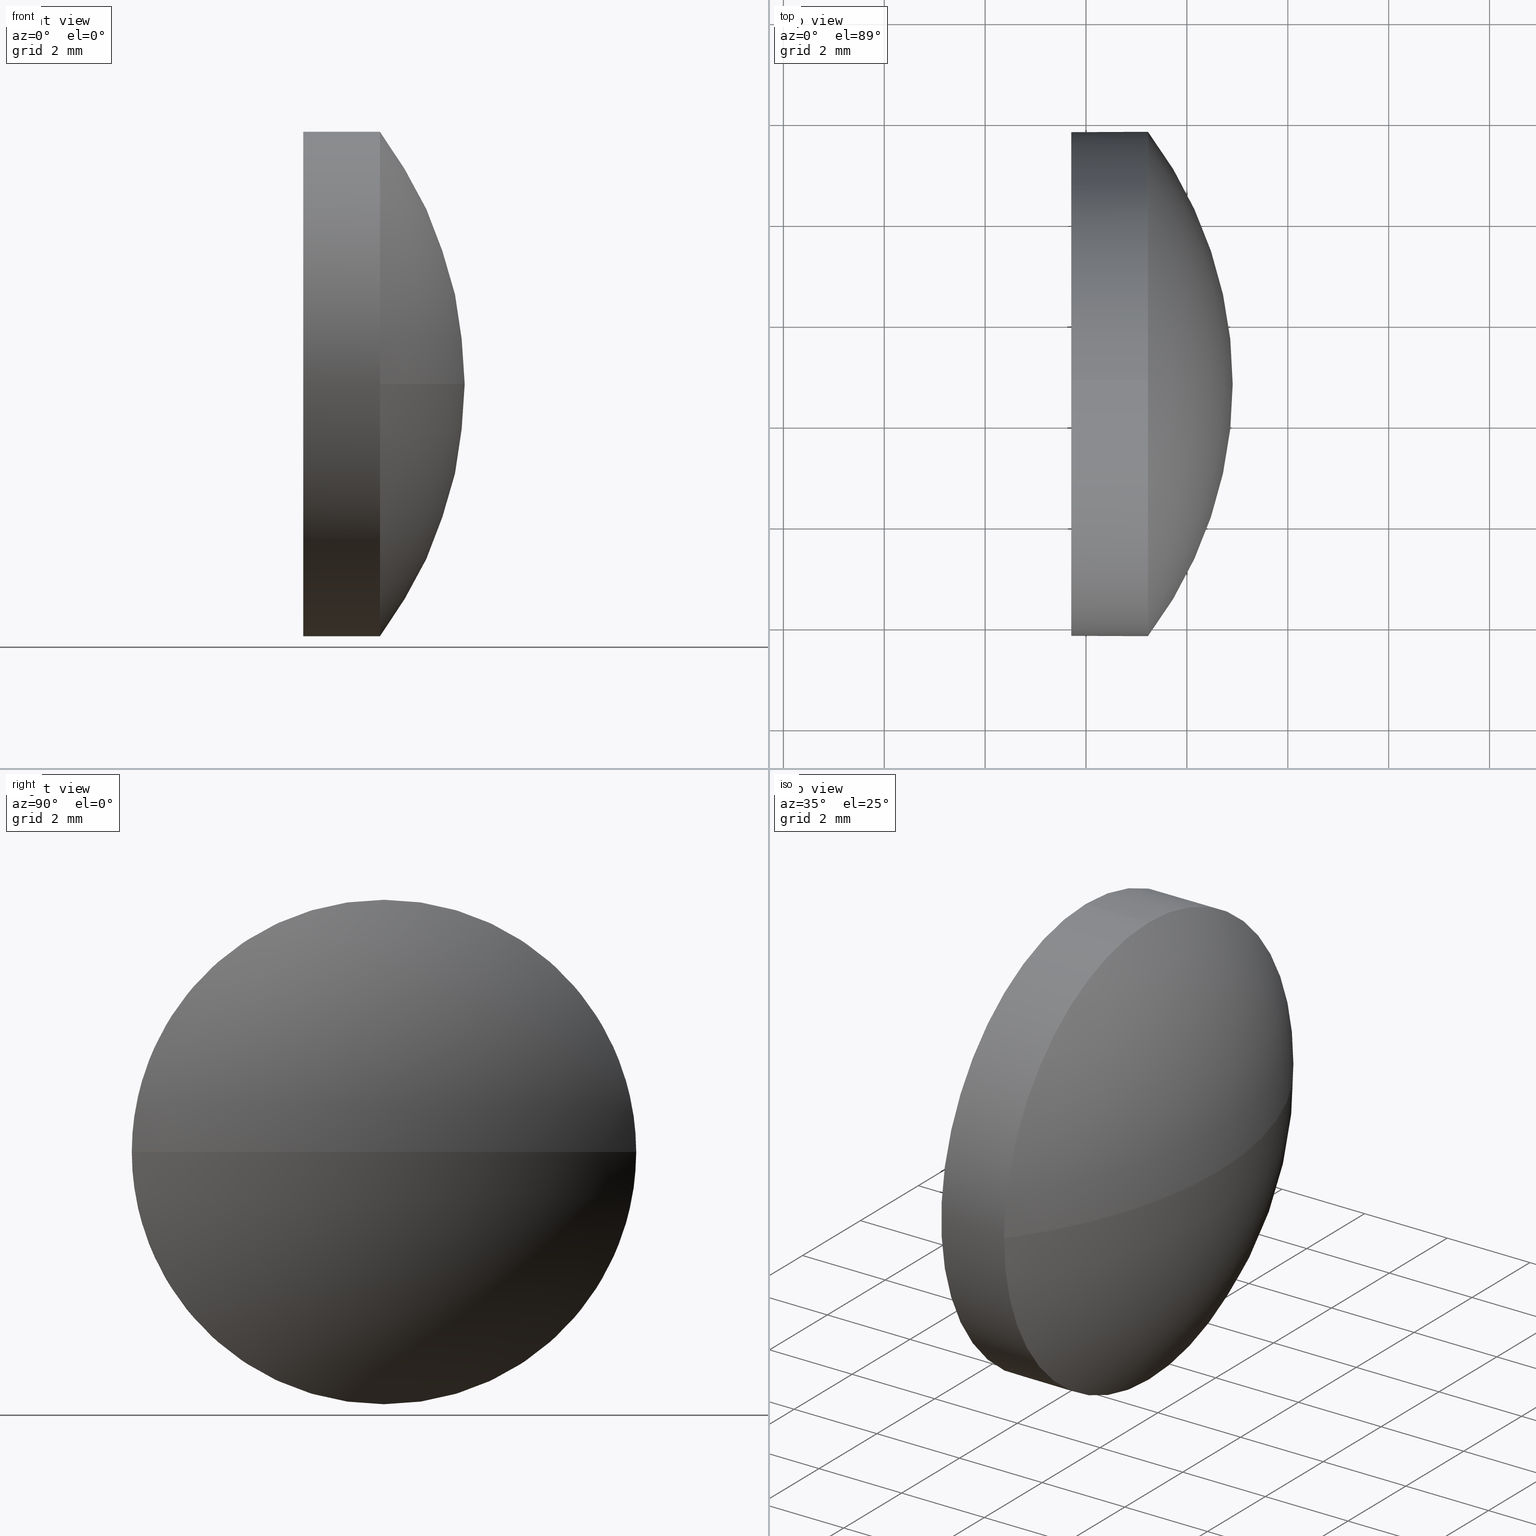
[diagram: canonical four-view strip — front | top / right | iso, engineering-drawing reading convention]
A machine part, canonical four-view strip (front | top / right | iso — engineering-drawing reading convention). The complete STEP part file that produces these views, byte-faithful:
ISO-10303-21;
HEADER;
FILE_DESCRIPTION (( 'STEP AP214' ),
    '1' );
FILE_NAME ('100101.STEP',
    '2019-05-13T07:22:55',
    ( '' ),
    ( '' ),
    'SwSTEP 2.0',
    'SolidWorks 2016',
    '' );
FILE_SCHEMA (( 'AUTOMOTIVE_DESIGN' ));
ENDSEC;

DATA;
#1 = STYLED_ITEM ( 'NONE', ( #65 ), #105 ) ;
#2 = ORIENTED_EDGE ( 'NONE', *, *, #127, .F. ) ;
#3 = ADVANCED_FACE ( 'NONE', ( #140 ), #104, .T. ) ;
#4 = AXIS2_PLACEMENT_3D ( 'NONE', #164, #181, #96 ) ;
#5 = DIRECTION ( 'NONE',  ( 0.0000000000000000000, 0.0000000000000000000, 1.000000000000000000 ) ) ;
#6 = LINE ( 'NONE', #98, #17 ) ;
#7 = AXIS2_PLACEMENT_3D ( 'NONE', #15, #45, #136 ) ;
#8 = EDGE_LOOP ( 'NONE', ( #25, #172, #67, #148, #77 ) ) ;
#9 = EDGE_LOOP ( 'NONE', ( #168, #139, #76, #44 ) ) ;
#10 = FILL_AREA_STYLE ('',( #40 ) ) ;
#11 = DIRECTION ( 'NONE',  ( 1.000000000000000000, 0.0000000000000000000, 0.0000000000000000000 ) ) ;
#12 = EDGE_CURVE ( 'NONE', #134, #60, #37, .T. ) ;
#13 = SURFACE_STYLE_USAGE ( .BOTH. , #124 ) ;
#14 =( GEOMETRIC_REPRESENTATION_CONTEXT ( 3 ) GLOBAL_UNCERTAINTY_ASSIGNED_CONTEXT ( ( #178 ) ) GLOBAL_UNIT_ASSIGNED_CONTEXT ( ( #39, #51, #121 ) ) REPRESENTATION_CONTEXT ( 'NONE', 'WORKASPACE' ) );
#15 = CARTESIAN_POINT ( 'NONE',  ( 552.7663889861640900, 146.7847069453768000, 0.0000000000000000000 ) ) ;
#16 = AXIS2_PLACEMENT_3D ( 'NONE', #117, #50, #33 ) ;
#17 = VECTOR ( 'NONE', #57, 1000.000000000000000 ) ;
#18 = CARTESIAN_POINT ( 'NONE',  ( 555.2279394579384200, 146.7847069453768000, 0.0000000000000000000 ) ) ;
#19 = EDGE_CURVE ( 'NONE', #103, #130, #110, .T. ) ;
#20 =( GEOMETRIC_REPRESENTATION_CONTEXT ( 3 ) GLOBAL_UNCERTAINTY_ASSIGNED_CONTEXT ( ( #61 ) ) GLOBAL_UNIT_ASSIGNED_CONTEXT ( ( #132, #123, #179 ) ) REPRESENTATION_CONTEXT ( 'NONE', 'WORKASPACE' ) );
#21 = CARTESIAN_POINT ( 'NONE',  ( 555.2279394579384200, 141.7847069453768000, -6.123233995736770200E-016 ) ) ;
#22 = PRESENTATION_LAYER_ASSIGNMENT (  '', '', ( #1 ) ) ;
#23 = CLOSED_SHELL ( 'NONE', ( #3, #71, #171, #58, #114 ) ) ;
#24 = APPLICATION_PROTOCOL_DEFINITION ( 'draft international standard', 'automotive_design', 1998, #52 ) ;
#25 = ORIENTED_EDGE ( 'NONE', *, *, #41, .T. ) ;
#26 = CARTESIAN_POINT ( 'NONE',  ( 553.7079394579385500, 146.7847069453768000, 5.000000000000004400 ) ) ;
#27 = PRESENTATION_LAYER_ASSIGNMENT (  '', '', ( #182 ) ) ;
#28 = MANIFOLD_SOLID_BREP ( '��ת1', #23 ) ;
#29 = AXIS2_PLACEMENT_3D ( 'NONE', #146, #64, #66 ) ;
#30 = CIRCLE ( 'NONE', #16, 5.000000000000004400 ) ;
#31 = MECHANICAL_DESIGN_GEOMETRIC_PRESENTATION_REPRESENTATION (  '', ( #1 ), #91 ) ;
#32 = ORIENTED_EDGE ( 'NONE', *, *, #173, .T. ) ;
#33 = DIRECTION ( 'NONE',  ( 0.0000000000000000000, 0.0000000000000000000, 1.000000000000000000 ) ) ;
#34 = CARTESIAN_POINT ( 'NONE',  ( 553.7079394579385500, 146.7847069453768000, 0.0000000000000000000 ) ) ;
#35 = MECHANICAL_DESIGN_GEOMETRIC_PRESENTATION_REPRESENTATION (  '', ( #182 ), #20 ) ;
#36 = VERTEX_POINT ( 'NONE', #82 ) ;
#37 = LINE ( 'NONE', #150, #68 ) ;
#38 = DIRECTION ( 'NONE',  ( 0.0000000000000000000, 1.224646799147353200E-016, -1.000000000000000000 ) ) ;
#39 =( LENGTH_UNIT ( ) NAMED_UNIT ( * ) SI_UNIT ( .MILLI., .METRE. ) );
#40 = FILL_AREA_STYLE_COLOUR ( '', #151 ) ;
#41 = EDGE_CURVE ( 'NONE', #176, #134, #59, .T. ) ;
#42 = AXIS2_PLACEMENT_3D ( 'NONE', #93, #106, #11 ) ;
#43 = EDGE_LOOP ( 'NONE', ( #2, #154, #97, #100 ) ) ;
#44 = ORIENTED_EDGE ( 'NONE', *, *, #19, .F. ) ;
#45 = DIRECTION ( 'NONE',  ( -1.000000000000000000, -0.0000000000000000000, -0.0000000000000000000 ) ) ;
#46 = AXIS2_PLACEMENT_3D ( 'NONE', #138, #156, #5 ) ;
#47 = AXIS2_PLACEMENT_3D ( 'NONE', #131, #159, #78 ) ;
#48 = CIRCLE ( 'NONE', #46, 5.000000000000004400 ) ;
#49 = CIRCLE ( 'NONE', #55, 5.000000000000004400 ) ;
#50 = DIRECTION ( 'NONE',  ( -1.000000000000000000, -0.0000000000000000000, -0.0000000000000000000 ) ) ;
#51 =( NAMED_UNIT ( * ) PLANE_ANGLE_UNIT ( ) SI_UNIT ( $, .RADIAN. ) );
#52 = APPLICATION_CONTEXT ( 'automotive_design' ) ;
#53 = SURFACE_SIDE_STYLE ('',( #137 ) ) ;
#54 = DIRECTION ( 'NONE',  ( 0.0000000000000000000, 1.000000000000000000, 0.0000000000000000000 ) ) ;
#55 = AXIS2_PLACEMENT_3D ( 'NONE', #129, #102, #120 ) ;
#56 = FACE_OUTER_BOUND ( 'NONE', #149, .T. ) ;
#57 = DIRECTION ( 'NONE',  ( -1.000000000000000000, -0.0000000000000000000, -0.0000000000000000000 ) ) ;
#58 = ADVANCED_FACE ( 'NONE', ( #56 ), #170, .T. ) ;
#59 = CIRCLE ( 'NONE', #29, 5.000000000000004400 ) ;
#60 = VERTEX_POINT ( 'NONE', #99 ) ;
#61 = UNCERTAINTY_MEASURE_WITH_UNIT (LENGTH_MEASURE( 1.000000000000000100E-005 ), #132, 'distance_accuracy_value', 'NONE');
#62 = SPHERICAL_SURFACE ( 'NONE', #108, 8.280476190476118600 ) ;
#63 = CARTESIAN_POINT ( 'NONE',  ( 548.6274632674624200, 146.7847069453768000, 0.0000000000000000000 ) ) ;
#64 = DIRECTION ( 'NONE',  ( -1.000000000000000000, -0.0000000000000000000, -0.0000000000000000000 ) ) ;
#65 = PRESENTATION_STYLE_ASSIGNMENT (( #143 ) ) ;
#66 = DIRECTION ( 'NONE',  ( 0.0000000000000000000, 0.0000000000000000000, 1.000000000000000000 ) ) ;
#67 = ORIENTED_EDGE ( 'NONE', *, *, #152, .F. ) ;
#68 = VECTOR ( 'NONE', #70, 1000.000000000000000 ) ;
#69 = DIRECTION ( 'NONE',  ( 0.0000000000000000000, 0.0000000000000000000, 1.000000000000000000 ) ) ;
#70 = DIRECTION ( 'NONE',  ( -1.000000000000000000, -0.0000000000000000000, -0.0000000000000000000 ) ) ;
#71 = ADVANCED_FACE ( 'NONE', ( #133 ), #62, .T. ) ;
#72 = PRODUCT_DEFINITION ( 'δ֪', '', #153, #158 ) ;
#73 = VERTEX_POINT ( 'NONE', #26 ) ;
#74 = UNCERTAINTY_MEASURE_WITH_UNIT (LENGTH_MEASURE( 1.000000000000000100E-005 ), #160, 'distance_accuracy_value', 'NONE');
#75 = PLANE ( 'NONE',  #90 ) ;
#76 = ORIENTED_EDGE ( 'NONE', *, *, #112, .F. ) ;
#77 = ORIENTED_EDGE ( 'NONE', *, *, #112, .T. ) ;
#78 = DIRECTION ( 'NONE',  ( 0.0000000000000000000, 1.000000000000000000, 0.0000000000000000000 ) ) ;
#79 = DIRECTION ( 'NONE',  ( 0.0000000000000000000, 0.0000000000000000000, 1.000000000000000000 ) ) ;
#80 = DIRECTION ( 'NONE',  ( 0.0000000000000000000, 1.000000000000000000, 1.224646799147353900E-016 ) ) ;
#81 = CIRCLE ( 'NONE', #162, 8.280476190476115100 ) ;
#82 = CARTESIAN_POINT ( 'NONE',  ( 556.9079394579384800, 146.7847069453768000, 0.0000000000000000000 ) ) ;
#83 = CARTESIAN_POINT ( 'NONE',  ( 555.2279394579384200, 146.7847069453768000, 5.000000000000004400 ) ) ;
#84 = ORIENTED_EDGE ( 'NONE', *, *, #12, .F. ) ;
#85 = SURFACE_STYLE_FILL_AREA ( #135 ) ;
#86 = FACE_OUTER_BOUND ( 'NONE', #9, .T. ) ;
#87 = COLOUR_RGB ( '',1.000000000000000000, 1.000000000000000000, 1.000000000000000000 ) ;
#88 = PRODUCT ( '100101', '100101', '', ( #145 ) ) ;
#89 = CIRCLE ( 'NONE', #116, 8.280476190476115100 ) ;
#90 = AXIS2_PLACEMENT_3D ( 'NONE', #118, #128, #142 ) ;
#91 =( GEOMETRIC_REPRESENTATION_CONTEXT ( 3 ) GLOBAL_UNCERTAINTY_ASSIGNED_CONTEXT ( ( #74 ) ) GLOBAL_UNIT_ASSIGNED_CONTEXT ( ( #160, #177, #119 ) ) REPRESENTATION_CONTEXT ( 'NONE', 'WORKASPACE' ) );
#92 = CARTESIAN_POINT ( 'NONE',  ( 555.2279394579384200, 151.7847069453768000, 0.0000000000000000000 ) ) ;
#93 = CARTESIAN_POINT ( 'NONE',  ( 0.0000000000000000000, 0.0000000000000000000, 0.0000000000000000000 ) ) ;
#94 = CARTESIAN_POINT ( 'NONE',  ( 548.6274632674624200, 146.7847069453768000, 0.0000000000000000000 ) ) ;
#95 = SHAPE_DEFINITION_REPRESENTATION ( #125, #105 ) ;
#96 = DIRECTION ( 'NONE',  ( 0.0000000000000000000, 0.0000000000000000000, 1.000000000000000000 ) ) ;
#97 = ORIENTED_EDGE ( 'NONE', *, *, #173, .F. ) ;
#98 = CARTESIAN_POINT ( 'NONE',  ( 552.7663889861640900, 146.7847069453768000, 5.000000000000004400 ) ) ;
#99 = CARTESIAN_POINT ( 'NONE',  ( 553.7079394579385500, 146.7847069453768000, -5.000000000000004400 ) ) ;
#100 = ORIENTED_EDGE ( 'NONE', *, *, #41, .F. ) ;
#101 = DIRECTION ( 'NONE',  ( -1.000000000000000000, -0.0000000000000000000, -0.0000000000000000000 ) ) ;
#102 = DIRECTION ( 'NONE',  ( -1.000000000000000000, -0.0000000000000000000, -0.0000000000000000000 ) ) ;
#103 = VERTEX_POINT ( 'NONE', #21 ) ;
#104 = CYLINDRICAL_SURFACE ( 'NONE', #7, 5.000000000000004400 ) ;
#105 = ADVANCED_BREP_SHAPE_REPRESENTATION ( '100101', ( #28, #42 ), #14 ) ;
#106 = DIRECTION ( 'NONE',  ( 0.0000000000000000000, 0.0000000000000000000, 1.000000000000000000 ) ) ;
#107 = APPLICATION_CONTEXT ( 'automotive_design' ) ;
#108 = AXIS2_PLACEMENT_3D ( 'NONE', #94, #109, #54 ) ;
#109 = DIRECTION ( 'NONE',  ( -0.0000000000000000000, 0.0000000000000000000, -1.000000000000000000 ) ) ;
#110 = CIRCLE ( 'NONE', #186, 5.000000000000004400 ) ;
#111 = DIRECTION ( 'NONE',  ( -1.000000000000000000, -0.0000000000000000000, -0.0000000000000000000 ) ) ;
#112 = EDGE_CURVE ( 'NONE', #130, #176, #30, .T. ) ;
#113 = EDGE_LOOP ( 'NONE', ( #184, #175 ) ) ;
#114 = ADVANCED_FACE ( 'NONE', ( #165 ), #75, .F. ) ;
#115 = CIRCLE ( 'NONE', #122, 5.000000000000004400 ) ;
#116 = AXIS2_PLACEMENT_3D ( 'NONE', #167, #183, #180 ) ;
#117 = CARTESIAN_POINT ( 'NONE',  ( 555.2279394579384200, 146.7847069453768000, 0.0000000000000000000 ) ) ;
#118 = CARTESIAN_POINT ( 'NONE',  ( 553.7079394579385500, 146.7847069453768000, 0.0000000000000000000 ) ) ;
#119 =( NAMED_UNIT ( * ) SI_UNIT ( $, .STERADIAN. ) SOLID_ANGLE_UNIT ( ) );
#120 = DIRECTION ( 'NONE',  ( 0.0000000000000000000, 0.0000000000000000000, 1.000000000000000000 ) ) ;
#121 =( NAMED_UNIT ( * ) SI_UNIT ( $, .STERADIAN. ) SOLID_ANGLE_UNIT ( ) );
#122 = AXIS2_PLACEMENT_3D ( 'NONE', #34, #101, #79 ) ;
#123 =( NAMED_UNIT ( * ) PLANE_ANGLE_UNIT ( ) SI_UNIT ( $, .RADIAN. ) );
#124 = SURFACE_SIDE_STYLE ('',( #85 ) ) ;
#125 = PRODUCT_DEFINITION_SHAPE ( 'NONE', 'NONE',  #72 ) ;
#126 = ORIENTED_EDGE ( 'NONE', *, *, #141, .F. ) ;
#127 = EDGE_CURVE ( 'NONE', #36, #176, #89, .T. ) ;
#128 = DIRECTION ( 'NONE',  ( 1.000000000000000000, 0.0000000000000000000, 0.0000000000000000000 ) ) ;
#129 = CARTESIAN_POINT ( 'NONE',  ( 555.2279394579384200, 146.7847069453768000, 0.0000000000000000000 ) ) ;
#130 = VERTEX_POINT ( 'NONE', #83 ) ;
#131 = CARTESIAN_POINT ( 'NONE',  ( 548.6274632674624200, 146.7847069453768000, 0.0000000000000000000 ) ) ;
#132 =( LENGTH_UNIT ( ) NAMED_UNIT ( * ) SI_UNIT ( .MILLI., .METRE. ) );
#133 = FACE_OUTER_BOUND ( 'NONE', #43, .T. ) ;
#134 = VERTEX_POINT ( 'NONE', #163 ) ;
#135 = FILL_AREA_STYLE ('',( #185 ) ) ;
#136 = DIRECTION ( 'NONE',  ( 0.0000000000000000000, 0.0000000000000000000, 1.000000000000000000 ) ) ;
#137 = SURFACE_STYLE_FILL_AREA ( #10 ) ;
#138 = CARTESIAN_POINT ( 'NONE',  ( 553.7079394579385500, 146.7847069453768000, 0.0000000000000000000 ) ) ;
#139 = ORIENTED_EDGE ( 'NONE', *, *, #127, .T. ) ;
#140 = FACE_OUTER_BOUND ( 'NONE', #8, .T. ) ;
#141 = EDGE_CURVE ( 'NONE', #60, #73, #48, .T. ) ;
#142 = DIRECTION ( 'NONE',  ( 0.0000000000000000000, 0.0000000000000000000, -1.000000000000000000 ) ) ;
#143 = SURFACE_STYLE_USAGE ( .BOTH. , #53 ) ;
#144 = ORIENTED_EDGE ( 'NONE', *, *, #147, .T. ) ;
#145 = PRODUCT_CONTEXT ( 'NONE', #52, 'mechanical' ) ;
#146 = CARTESIAN_POINT ( 'NONE',  ( 555.2279394579384200, 146.7847069453768000, 0.0000000000000000000 ) ) ;
#147 = EDGE_CURVE ( 'NONE', #130, #73, #6, .T. ) ;
#148 = ORIENTED_EDGE ( 'NONE', *, *, #147, .F. ) ;
#149 = EDGE_LOOP ( 'NONE', ( #84, #32, #166, #144, #126 ) ) ;
#150 = CARTESIAN_POINT ( 'NONE',  ( 552.7663889861640900, 146.7847069453768000, -5.000000000000004400 ) ) ;
#151 = COLOUR_RGB ( '',1.000000000000000000, 1.000000000000000000, 1.000000000000000000 ) ;
#152 = EDGE_CURVE ( 'NONE', #73, #60, #115, .T. ) ;
#153 = PRODUCT_DEFINITION_FORMATION_WITH_SPECIFIED_SOURCE ( '�κ�', '', #88, .NOT_KNOWN. ) ;
#154 = ORIENTED_EDGE ( 'NONE', *, *, #161, .T. ) ;
#155 = PRESENTATION_STYLE_ASSIGNMENT (( #13 ) ) ;
#156 = DIRECTION ( 'NONE',  ( -1.000000000000000000, -0.0000000000000000000, -0.0000000000000000000 ) ) ;
#157 = SPHERICAL_SURFACE ( 'NONE', #47, 8.280476190476118600 ) ;
#158 = PRODUCT_DEFINITION_CONTEXT ( 'detailed design', #107, 'design' ) ;
#159 = DIRECTION ( 'NONE',  ( -0.0000000000000000000, 0.0000000000000000000, -1.000000000000000000 ) ) ;
#160 =( LENGTH_UNIT ( ) NAMED_UNIT ( * ) SI_UNIT ( .MILLI., .METRE. ) );
#161 = EDGE_CURVE ( 'NONE', #36, #103, #81, .T. ) ;
#162 = AXIS2_PLACEMENT_3D ( 'NONE', #63, #38, #80 ) ;
#163 = CARTESIAN_POINT ( 'NONE',  ( 555.2279394579384200, 146.7847069453768000, -5.000000000000004400 ) ) ;
#164 = CARTESIAN_POINT ( 'NONE',  ( 552.7663889861640900, 146.7847069453768000, 0.0000000000000000000 ) ) ;
#165 = FACE_OUTER_BOUND ( 'NONE', #113, .T. ) ;
#166 = ORIENTED_EDGE ( 'NONE', *, *, #19, .T. ) ;
#167 = CARTESIAN_POINT ( 'NONE',  ( 548.6274632674624200, 146.7847069453768000, 0.0000000000000000000 ) ) ;
#168 = ORIENTED_EDGE ( 'NONE', *, *, #161, .F. ) ;
#169 = PRODUCT_RELATED_PRODUCT_CATEGORY ( 'part', '', ( #88 ) ) ;
#170 = CYLINDRICAL_SURFACE ( 'NONE', #4, 5.000000000000004400 ) ;
#171 = ADVANCED_FACE ( 'NONE', ( #86 ), #157, .T. ) ;
#172 = ORIENTED_EDGE ( 'NONE', *, *, #12, .T. ) ;
#173 = EDGE_CURVE ( 'NONE', #134, #103, #49, .T. ) ;
#174 = APPLICATION_PROTOCOL_DEFINITION ( 'draft international standard', 'automotive_design', 1998, #107 ) ;
#175 = ORIENTED_EDGE ( 'NONE', *, *, #141, .T. ) ;
#176 = VERTEX_POINT ( 'NONE', #92 ) ;
#177 =( NAMED_UNIT ( * ) PLANE_ANGLE_UNIT ( ) SI_UNIT ( $, .RADIAN. ) );
#178 = UNCERTAINTY_MEASURE_WITH_UNIT (LENGTH_MEASURE( 1.000000000000000100E-005 ), #39, 'distance_accuracy_value', 'NONE');
#179 =( NAMED_UNIT ( * ) SI_UNIT ( $, .STERADIAN. ) SOLID_ANGLE_UNIT ( ) );
#180 = DIRECTION ( 'NONE',  ( 1.000000000000000000, 0.0000000000000000000, 0.0000000000000000000 ) ) ;
#181 = DIRECTION ( 'NONE',  ( -1.000000000000000000, -0.0000000000000000000, -0.0000000000000000000 ) ) ;
#182 = STYLED_ITEM ( 'NONE', ( #155 ), #28 ) ;
#183 = DIRECTION ( 'NONE',  ( -0.0000000000000000000, 0.0000000000000000000, 1.000000000000000000 ) ) ;
#184 = ORIENTED_EDGE ( 'NONE', *, *, #152, .T. ) ;
#185 = FILL_AREA_STYLE_COLOUR ( '', #87 ) ;
#186 = AXIS2_PLACEMENT_3D ( 'NONE', #18, #111, #69 ) ;
ENDSEC;
END-ISO-10303-21;
